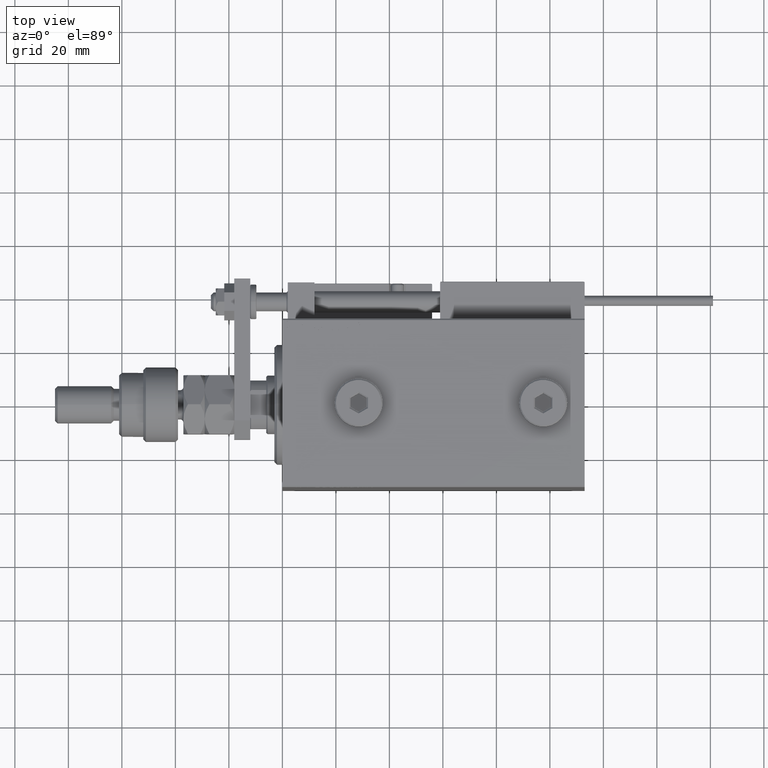
[diagram: clean part render]
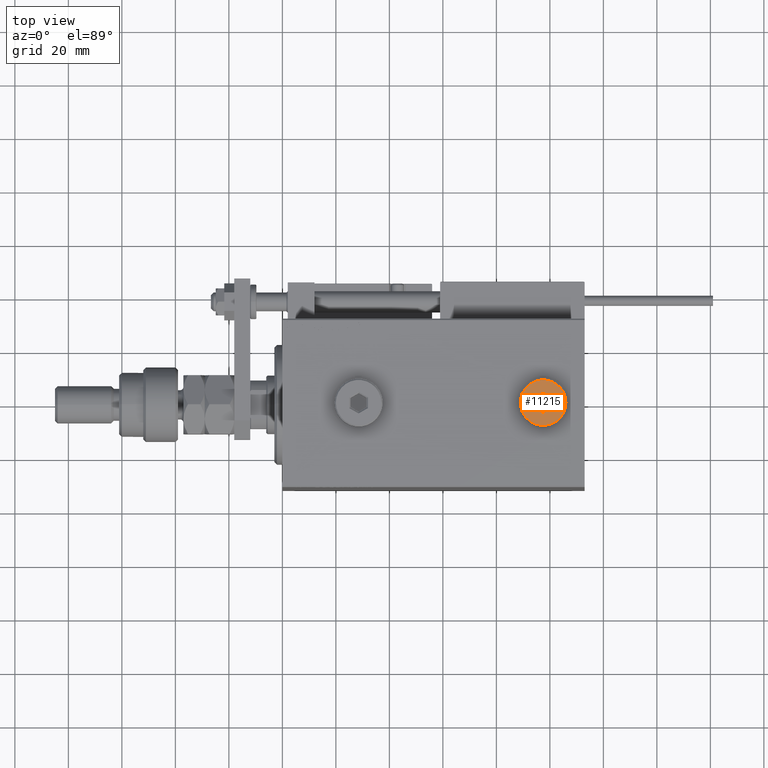
[diagram: same view with one face highlighted and labeled with its STEP entity id]
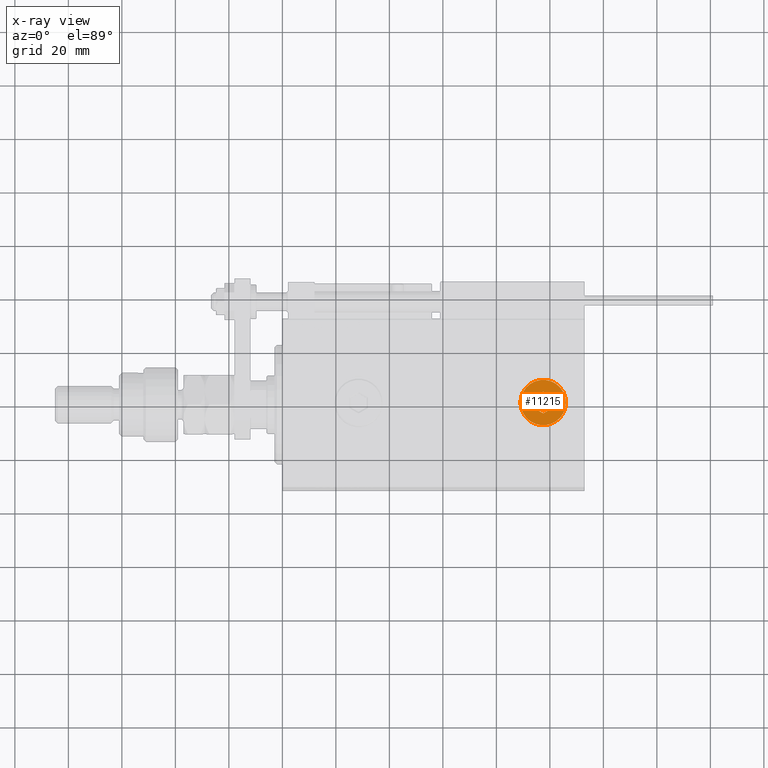
[diagram: x-ray of the same camera — body ghosted, the highlighted face saturated]
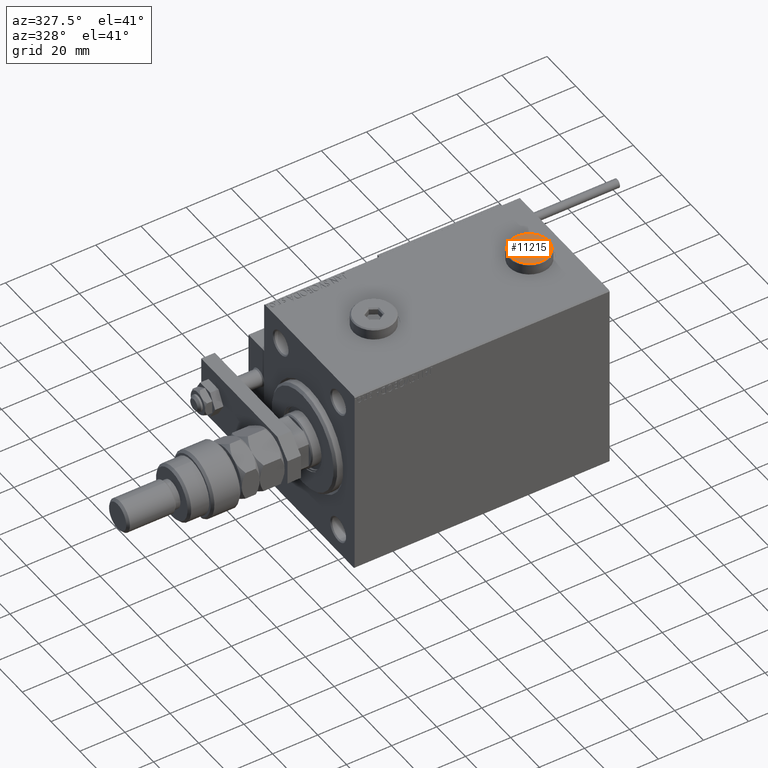
[diagram: same view with one face highlighted and labeled with its STEP entity id]
A machine part, top view. The second image highlights one B-rep face of the part: STEP entity #11215.
The next image is the same camera in x-ray: the body ghosted, the highlighted face saturated — about 0% of this face is hidden behind the body in this view.
A second angle (auxiliary view) of the same face is appended — the face is thin or edge-on in the first view.
In plain terms, the highlighted planar face has unit normal (0, 0, 1).
Its self-contained STEP definition (entity closure, byte-faithful):
#35 = CARTESIAN_POINT ( 'NONE',  ( 0.000000000000000000, 0.000000000000000000, 5.000000000000000000 ) ) ;
#236 = DIRECTION ( 'NONE',  ( 1.000000000000000000, 0.000000000000000000, 0.000000000000000000 ) ) ;
#683 = ORIENTED_EDGE ( 'NONE', *, *, #18291, .T. ) ;
#1361 = VERTEX_POINT ( 'NONE', #34686 ) ;
#1493 = CIRCLE ( 'NONE', #3295, 8.500000000000010658 ) ;
#1880 = CARTESIAN_POINT ( 'NONE',  ( 8.500000000000010658, 1.071565949253934716E-15, 5.000000000000000000 ) ) ;
#3295 = AXIS2_PLACEMENT_3D ( 'NONE', #4181, #50381, #236 ) ;
#3862 = EDGE_CURVE ( 'NONE', #46063, #19419, #11268, .T. ) ;
#4181 = CARTESIAN_POINT ( 'NONE',  ( 0.000000000000000000, 0.000000000000000000, 5.000000000000000000 ) ) ;
#5868 = CARTESIAN_POINT ( 'NONE',  ( 0.2500000000000027756, -3.897114317029979347, 5.000000000000000000 ) ) ;
#6367 = EDGE_CURVE ( 'NONE', #31938, #37353, #39608, .T. ) ;
#8278 = CARTESIAN_POINT ( 'NONE',  ( -0.2500000000000027756, 3.897114317029978459, 5.000000000000000000 ) ) ;
#8475 = EDGE_CURVE ( 'NONE', #45107, #31938, #8553, .T. ) ;
#8553 = LINE ( 'NONE', #8278, #38123 ) ;
#9666 = VECTOR ( 'NONE', #52773, 1000.000000000000114 ) ;
#11215 = ADVANCED_FACE ( 'NONE', ( #15755, #37015 ), #32821, .T. ) ;
#11258 = EDGE_LOOP ( 'NONE', ( #42607, #37590, #52503, #39712, #683, #17188 ) ) ;
#11268 = CIRCLE ( 'NONE', #42520, 8.500000000000010658 ) ;
#12074 = LINE ( 'NONE', #25206, #35887 ) ;
#15183 = EDGE_CURVE ( 'NONE', #19419, #46063, #1493, .T. ) ;
#15755 = FACE_BOUND ( 'NONE', #11258, .T. ) ;
#17188 = ORIENTED_EDGE ( 'NONE', *, *, #17472, .T. ) ;
#17472 = EDGE_CURVE ( 'NONE', #1361, #25606, #30913, .T. ) ;
#17604 = VECTOR ( 'NONE', #44369, 1000.000000000000000 ) ;
#18291 = EDGE_CURVE ( 'NONE', #37055, #1361, #19287, .T. ) ;
#19220 = CARTESIAN_POINT ( 'NONE',  ( -3.500000000000006661, -2.020725942163694278, 5.000000000000000000 ) ) ;
#19287 = LINE ( 'NONE', #5868, #19530 ) ;
#19419 = VERTEX_POINT ( 'NONE', #1880 ) ;
#19530 = VECTOR ( 'NONE', #36354, 1000.000000000000000 ) ;
#22507 = VECTOR ( 'NONE', #22788, 1000.000000000000000 ) ;
#22556 = CARTESIAN_POINT ( 'NONE',  ( 3.500000000000006661, -2.020725942163693833, 5.000000000000000000 ) ) ;
#22788 = DIRECTION ( 'NONE',  ( 0.000000000000000000, -1.000000000000000000, 0.000000000000000000 ) ) ;
#24384 = DIRECTION ( 'NONE',  ( 0.000000000000000000, 1.000000000000000000, 0.000000000000000000 ) ) ;
#25206 = CARTESIAN_POINT ( 'NONE',  ( -3.500000000000006661, 1.732050807568878081, 5.000000000000000000 ) ) ;
#25336 = DIRECTION ( 'NONE',  ( 0.8660254037844387076, 0.4999999999999998335, 0.000000000000000000 ) ) ;
#25606 = VERTEX_POINT ( 'NONE', #19220 ) ;
#25707 = CARTESIAN_POINT ( 'NONE',  ( -3.500000000000006661, 2.020725942163692945, 5.000000000000000000 ) ) ;
#29212 = CARTESIAN_POINT ( 'NONE',  ( 3.500000000000006661, 2.020725942163694722, 5.000000000000000000 ) ) ;
#29926 = AXIS2_PLACEMENT_3D ( 'NONE', #35, #47077, #30830 ) ;
#30830 = DIRECTION ( 'NONE',  ( 1.000000000000000000, 0.000000000000000000, -0.000000000000000000 ) ) ;
#30913 = LINE ( 'NONE', #35930, #9666 ) ;
#31299 = EDGE_CURVE ( 'NONE', #25606, #45107, #12074, .T. ) ;
#31938 = VERTEX_POINT ( 'NONE', #54737 ) ;
#32191 = EDGE_CURVE ( 'NONE', #37353, #37055, #53315, .T. ) ;
#32821 = PLANE ( 'NONE',  #29926 ) ;
#33883 = ORIENTED_EDGE ( 'NONE', *, *, #3862, .T. ) ;
#34566 = EDGE_LOOP ( 'NONE', ( #33883, #50597 ) ) ;
#34686 = CARTESIAN_POINT ( 'NONE',  ( -1.006139216460143630E-15, -4.041451884327387667, 5.000000000000000000 ) ) ;
#35887 = VECTOR ( 'NONE', #24384, 1000.000000000000000 ) ;
#35930 = CARTESIAN_POINT ( 'NONE',  ( -3.250000000000003109, -2.165063509461102598, 5.000000000000000000 ) ) ;
#36354 = DIRECTION ( 'NONE',  ( -0.8660254037844387076, -0.4999999999999998890, 0.000000000000000000 ) ) ;
#37015 = FACE_OUTER_BOUND ( 'NONE', #34566, .T. ) ;
#37055 = VERTEX_POINT ( 'NONE', #22556 ) ;
#37353 = VERTEX_POINT ( 'NONE', #29212 ) ;
#37590 = ORIENTED_EDGE ( 'NONE', *, *, #8475, .T. ) ;
#38123 = VECTOR ( 'NONE', #25336, 1000.000000000000000 ) ;
#39608 = LINE ( 'NONE', #53351, #17604 ) ;
#39712 = ORIENTED_EDGE ( 'NONE', *, *, #32191, .T. ) ;
#42520 = AXIS2_PLACEMENT_3D ( 'NONE', #53034, #49941, #53317 ) ;
#42607 = ORIENTED_EDGE ( 'NONE', *, *, #31299, .T. ) ;
#44331 = CARTESIAN_POINT ( 'NONE',  ( 3.500000000000006661, -1.732050807568878303, 5.000000000000000000 ) ) ;
#44369 = DIRECTION ( 'NONE',  ( 0.8660254037844387076, -0.4999999999999998890, 0.000000000000000000 ) ) ;
#45107 = VERTEX_POINT ( 'NONE', #25707 ) ;
#46063 = VERTEX_POINT ( 'NONE', #54794 ) ;
#47077 = DIRECTION ( 'NONE',  ( 0.000000000000000000, 0.000000000000000000, 1.000000000000000000 ) ) ;
#49941 = DIRECTION ( 'NONE',  ( 0.000000000000000000, 0.000000000000000000, 1.000000000000000000 ) ) ;
#50381 = DIRECTION ( 'NONE',  ( 0.000000000000000000, 0.000000000000000000, 1.000000000000000000 ) ) ;
#50597 = ORIENTED_EDGE ( 'NONE', *, *, #15183, .T. ) ;
#52503 = ORIENTED_EDGE ( 'NONE', *, *, #6367, .T. ) ;
#52773 = DIRECTION ( 'NONE',  ( -0.8660254037844385966, 0.4999999999999999445, 0.000000000000000000 ) ) ;
#53034 = CARTESIAN_POINT ( 'NONE',  ( 0.000000000000000000, 0.000000000000000000, 5.000000000000000000 ) ) ;
#53315 = LINE ( 'NONE', #44331, #22507 ) ;
#53317 = DIRECTION ( 'NONE',  ( 1.000000000000000000, 0.000000000000000000, 0.000000000000000000 ) ) ;
#53351 = CARTESIAN_POINT ( 'NONE',  ( 3.250000000000003109, 2.165063509461103042, 5.000000000000000000 ) ) ;
#54737 = CARTESIAN_POINT ( 'NONE',  ( 1.590596867181068292E-15, 4.041451884327386779, 5.000000000000000000 ) ) ;
#54794 = CARTESIAN_POINT ( 'NONE',  ( -8.500000000000010658, 0.000000000000000000, 5.000000000000000000 ) ) ;